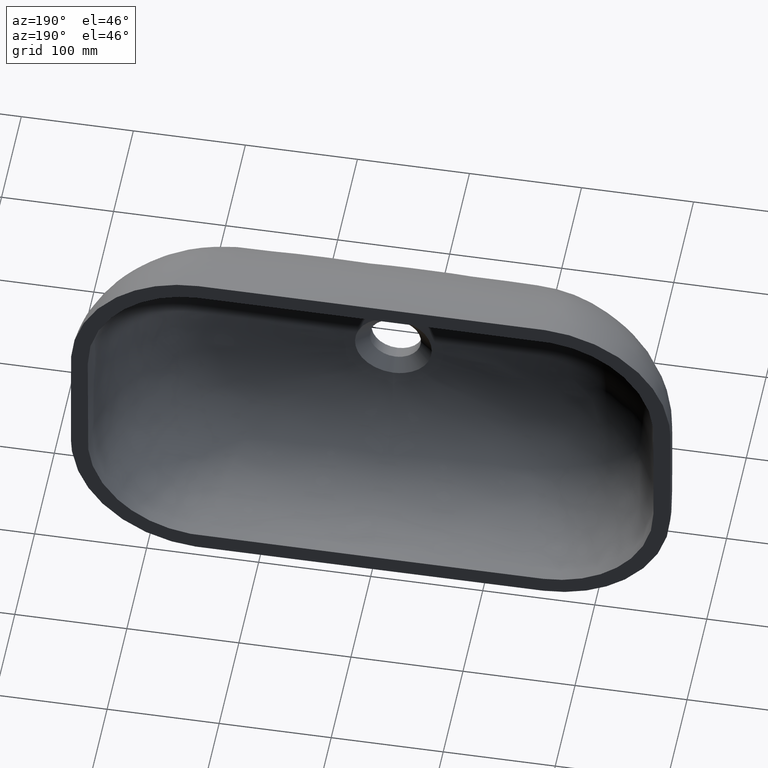
[diagram: clean part render]
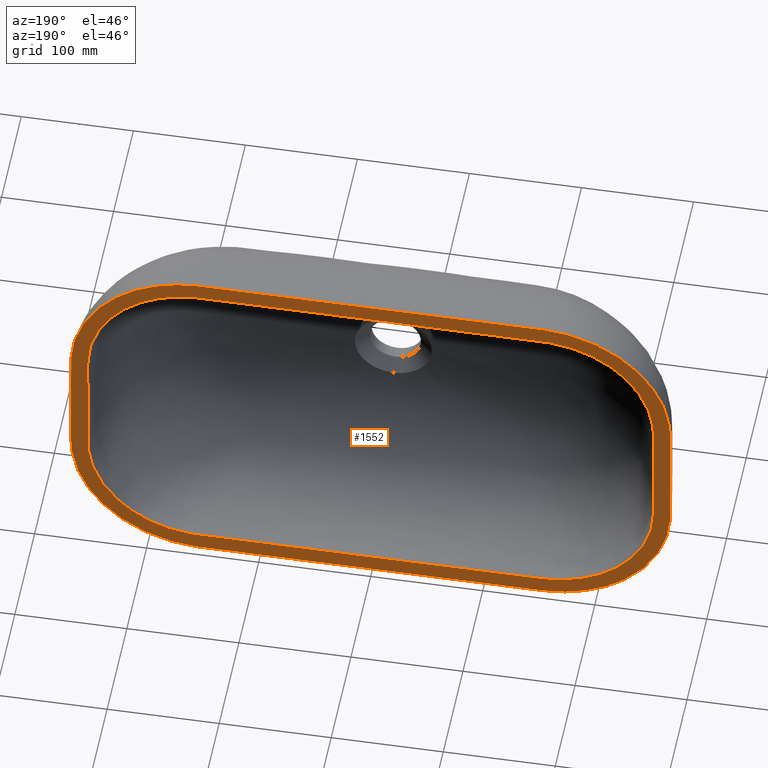
[diagram: same view with one face highlighted and labeled with its STEP entity id]
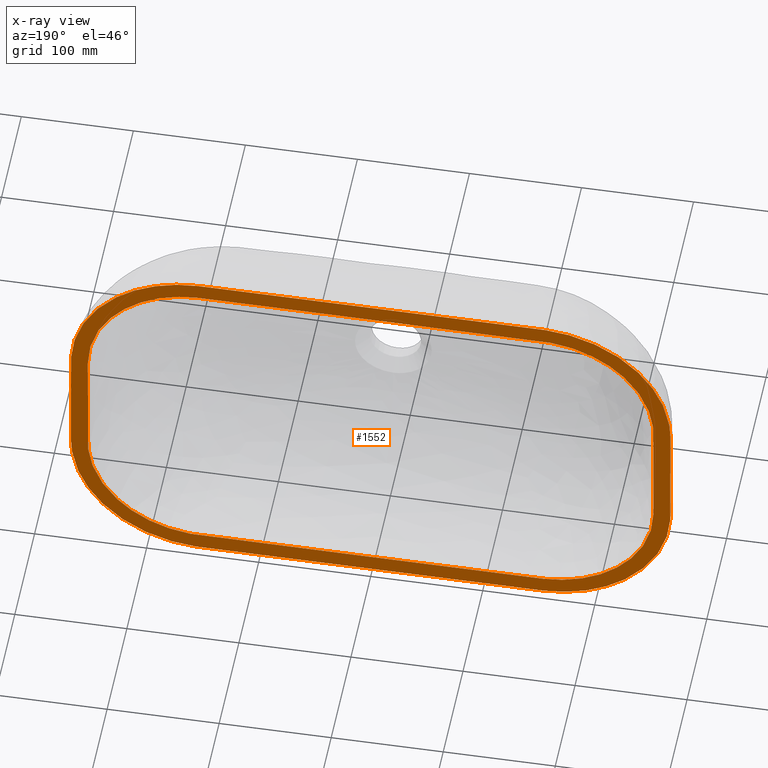
[diagram: x-ray of the same camera — body ghosted, the highlighted face saturated]
A machine part, auxiliary view. The second image highlights one B-rep face of the part: STEP entity #1552.
The next image is the same camera in x-ray: the body ghosted, the highlighted face saturated — about 0% of this face is hidden behind the body in this view.
In plain terms, the highlighted planar face has unit normal (0, 1, 0).
Its self-contained STEP definition (entity closure, byte-faithful):
#3 = CARTESIAN_POINT ( 'NONE',  ( 252.5000000000000600, 0.0000000000000000000, 4.093947403305264700E-013 ) ) ;
#24 = EDGE_CURVE ( 'NONE', #2799, #1051, #1703, .T. ) ;
#50 = CARTESIAN_POINT ( 'NONE',  ( -146.2050616840752800, 0.0000000000000000000, 150.0000000000000900 ) ) ;
#53 = CARTESIAN_POINT ( 'NONE',  ( 5.521322982815487400E-013, 0.0000000000000000000, -150.0000000000000900 ) ) ;
#75 = CARTESIAN_POINT ( 'NONE',  ( -252.4999999999999400, 0.0000000000000000000, -31.26941913139129200 ) ) ;
#103 = CARTESIAN_POINT ( 'NONE',  ( -47.68586417537038400, 0.0000000000000000000, -150.0000000000000900 ) ) ;
#173 = CARTESIAN_POINT ( 'NONE',  ( -267.4999999999999400, 0.0000000000000000000, -33.33333333333328600 ) ) ;
#204 = CARTESIAN_POINT ( 'NONE',  ( -155.8552154633222000, 0.0000000000000000000, 164.9999999999999700 ) ) ;
#376 = CARTESIAN_POINT ( 'NONE',  ( 155.8552154633219700, 0.0000000000000000000, -164.9999999999999400 ) ) ;
#461 = CARTESIAN_POINT ( 'NONE',  ( -2.182126180372280600E-013, 0.0000000000000000000, -164.9999999999999700 ) ) ;
#490 = CARTESIAN_POINT ( 'NONE',  ( 159.1957514213911500, 0.0000000000000000000, -164.8529500517273900 ) ) ;
#548 = CARTESIAN_POINT ( 'NONE',  ( 267.4841924269527500, 0.0000000000000000000, 52.19856327019732600 ) ) ;
#606 = CARTESIAN_POINT ( 'NONE',  ( 4.768586417537084900, 0.0000000000000000000, 150.0000000000000900 ) ) ;
#633 = CARTESIAN_POINT ( 'NONE',  ( 146.2050616840755000, 0.0000000000000000000, 150.0000000000000600 ) ) ;
#662 = CARTESIAN_POINT ( 'NONE',  ( 267.1830792806035800, 0.0000000000000000000, -62.68921065731597500 ) ) ;
#694 = CARTESIAN_POINT ( 'NONE',  ( 190.0567244576950000, 0.0000000000000000000, -144.5806142157572900 ) ) ;
#723 = CARTESIAN_POINT ( 'NONE',  ( 250.1520662592155000, 0.0000000000000000000, -76.28651201574219000 ) ) ;
#738 = CARTESIAN_POINT ( 'NONE',  ( -171.5740750597823900, 0.0000000000000000000, 150.0000000000000600 ) ) ;
#764 = CARTESIAN_POINT ( 'NONE',  ( -252.4999999999999400, 0.0000000000000000000, -48.96804289902890900 ) ) ;
#769 = ORIENTED_EDGE ( 'NONE', *, *, #24, .T. ) ;
#787 = ORIENTED_EDGE ( 'NONE', *, *, #7530, .T. ) ;
#822 = EDGE_CURVE ( 'NONE', #5162, #1463, #954, .T. ) ;
#833 = CARTESIAN_POINT ( 'NONE',  ( -155.8552154633224200, 0.0000000000000000000, -164.9999999999999700 ) ) ;
#863 = CARTESIAN_POINT ( 'NONE',  ( -267.4999999999999400, 0.0000000000000000000, 33.33333333333335700 ) ) ;
#894 = CARTESIAN_POINT ( 'NONE',  ( -68.62499999999973000, 0.0000000000000000000, 165.0000000000002000 ) ) ;
#954 = B_SPLINE_CURVE_WITH_KNOTS ( 'NONE', 3,
 ( #5307, #2459, #1093, #1207, #1895, #3271, #6687, #2577, #8746, #3956, #7364, #4649, #8057, #5339, #6028, #548, #1237, #8201, #3415, #3383, #4073, #1178, #662, #4761, #8775, #6141, #2036, #6828, #7509, #490, #376, #1924, #4589, #461 ),
 .UNSPECIFIED., .F., .F.,
 ( 4, 1, 1, 1, 2, 2, 2, 1, 1, 1, 2, 2, 1, 2, 2, 1, 1, 1, 2, 2, 2, 4 ),
 ( 0.0000000000000000000, 0.009889902390971110400, 0.01483485358645666500, 0.01977980478194233200, 0.09889902390971143400, 0.1054267786834032600, 0.1449858270096647800, 0.1604303108690128500, 0.1787648215975493100, 0.1970993323260858700, 0.2154338430546223200, 0.2175740905214061900, 0.2500000000000001700, 0.2824259094785940300, 0.2845661569453784600, 0.3029006676739149900, 0.3212351784024515800, 0.3395696891309881700, 0.3550141729903358900, 0.3945732213165978300, 0.4011009760902891100, 0.5000000000000005600 ),
 .UNSPECIFIED. ) ;
#1051 = VERTEX_POINT ( 'NONE', #3812 ) ;
#1093 = CARTESIAN_POINT ( 'NONE',  ( 12.70833333333330700, 0.0000000000000000000, 165.0000000000000300 ) ) ;
#1178 = CARTESIAN_POINT ( 'NONE',  ( 267.4841924269527500, 0.0000000000000000000, -52.19856327019777400 ) ) ;
#1207 = CARTESIAN_POINT ( 'NONE',  ( 22.87500000000000700, 0.0000000000000000000, 165.0000000000000300 ) ) ;
#1237 = CARTESIAN_POINT ( 'NONE',  ( 267.5000000000000600, 0.0000000000000000000, 51.10007064371214400 ) ) ;
#1321 = CARTESIAN_POINT ( 'NONE',  ( 171.5740750597822700, 0.0000000000000000000, 149.9999999999998600 ) ) ;
#1408 = CARTESIAN_POINT ( 'NONE',  ( 1.301042606982605300E-015, 0.0000000000000000000, 165.0000000000000300 ) ) ;
#1427 = CARTESIAN_POINT ( 'NONE',  ( -212.1746747013774600, 0.0000000000000000000, 130.5718779813458900 ) ) ;
#1453 = CARTESIAN_POINT ( 'NONE',  ( -250.1520662592153900, 0.0000000000000000000, -76.28651201574221800 ) ) ;
#1463 = VERTEX_POINT ( 'NONE', #5395 ) ;
#1520 = CARTESIAN_POINT ( 'NONE',  ( -182.6133373938369000, 0.0000000000000000000, -162.8045061827871800 ) ) ;
#1551 = CARTESIAN_POINT ( 'NONE',  ( -267.4841924269526300, 0.0000000000000000000, 52.19856327019770200 ) ) ;
#1552 = ADVANCED_FACE ( 'NONE', ( #2398, #6364 ), #2692, .T. ) ;
#1583 = CARTESIAN_POINT ( 'NONE',  ( -12.70833333333329100, 0.0000000000000000000, 165.0000000000000300 ) ) ;
#1623 = AXIS2_PLACEMENT_3D ( 'NONE', #1408, #6880, #2272 ) ;
#1703 = B_SPLINE_CURVE_WITH_KNOTS ( 'NONE', 3,
 ( #8662, #2634, #5217, #3098, #1806, #6204, #694, #6716, #3986, #7480, #723, #5514, #8689, #5857, #6629, #3, #2754, #7911, #2489, #6598, #6113, #6798, #7422, #2007, #2665, #1321, #5423, #633, #4042, #1836, #2432, #5278, #606, #4703 ),
 .UNSPECIFIED., .F., .F.,
 ( 4, 2, 2, 2, 1, 1, 1, 2, 2, 1, 2, 2, 1, 1, 1, 2, 2, 2, 1, 1, 1, 4 ),
 ( 0.5000000000000001100, 0.5988990239097113900, 0.6054267786834026700, 0.6449858270096645600, 0.6604303108690123800, 0.6787648215975488100, 0.6970993323260853400, 0.7154338430546218800, 0.7175740905214063000, 0.7500000000000002200, 0.7824259094785941400, 0.7845661569453779000, 0.8029006676739143300, 0.8212351784024509700, 0.8395696891309874000, 0.8550141729903354400, 0.8945732213165968900, 0.9011009760902886100, 0.9802201952180577000, 0.9851651464135433600, 0.9901100976090289100, 1.000000000000000000 ),
 .UNSPECIFIED. ) ;
#1806 = CARTESIAN_POINT ( 'NONE',  ( 149.3525308420379600, 0.0000000000000000000, -149.9999999999999700 ) ) ;
#1836 = CARTESIAN_POINT ( 'NONE',  ( 64.37591663675054600, 0.0000000000000000000, 150.0000000000003100 ) ) ;
#1895 = CARTESIAN_POINT ( 'NONE',  ( 68.62500000000005700, 0.0000000000000000000, 165.0000000000000300 ) ) ;
#1924 = CARTESIAN_POINT ( 'NONE',  ( 101.6666666666667400, 0.0000000000000000000, -164.9999999999998000 ) ) ;
#2007 = CARTESIAN_POINT ( 'NONE',  ( 212.1746747013775100, 0.0000000000000000000, 130.5718779813460300 ) ) ;
#2036 = CARTESIAN_POINT ( 'NONE',  ( 224.7483168546813800, 0.0000000000000000000, -139.8077178233010900 ) ) ;
#2084 = CARTESIAN_POINT ( 'NONE',  ( 4.336808689942017700E-016, 0.0000000000000000000, 150.0000000000000600 ) ) ;
#2110 = CARTESIAN_POINT ( 'NONE',  ( -240.1607435241636800, 0.0000000000000000000, 100.4493998604104900 ) ) ;
#2138 = CARTESIAN_POINT ( 'NONE',  ( -224.8855864008491500, 0.0000000000000000000, -120.4304068195825300 ) ) ;
#2204 = CARTESIAN_POINT ( 'NONE',  ( -224.7483168546818300, 0.0000000000000000000, -139.8077178233006100 ) ) ;
#2233 = CARTESIAN_POINT ( 'NONE',  ( -264.3455447764162600, 0.0000000000000000000, 81.19788710368840200 ) ) ;
#2265 = CARTESIAN_POINT ( 'NONE',  ( 1.301042606982605300E-015, 0.0000000000000000000, 165.0000000000000300 ) ) ;
#2272 = DIRECTION ( 'NONE',  ( -5.782411586589362300E-017, 0.0000000000000000000, -1.000000000000000000 ) ) ;
#2398 = FACE_OUTER_BOUND ( 'NONE', #5396, .T. ) ;
#2432 = CARTESIAN_POINT ( 'NONE',  ( 21.45863887891687600, 0.0000000000000000000, 150.0000000000001400 ) ) ;
#2459 = CARTESIAN_POINT ( 'NONE',  ( 5.083333333333325000, 0.0000000000000000000, 165.0000000000000300 ) ) ;
#2489 = CARTESIAN_POINT ( 'NONE',  ( 252.5000000000000600, 0.0000000000000000000, 48.96804289902889500 ) ) ;
#2558 = B_SPLINE_CURVE_WITH_KNOTS ( 'NONE', 3,
 ( #2863, #7645, #4932, #833, #5628, #1520, #6308, #2204, #6990, #2891, #7674, #3581, #8372, #4270, #173, #4964, #863, #5658, #1551, #6342, #2233, #7019, #2921, #7707, #3610, #8404, #4298, #204, #4993, #894, #5686, #1583, #6374, #2265 ),
 .UNSPECIFIED., .F., .F.,
 ( 4, 2, 2, 2, 1, 1, 1, 2, 2, 1, 2, 2, 1, 1, 1, 2, 2, 2, 1, 1, 1, 4 ),
 ( 0.5000000000000005600, 0.5988990239097116100, 0.6054267786834040000, 0.6449858270096651100, 0.6604303108690132700, 0.6787648215975496900, 0.6970993323260861200, 0.7154338430546226500, 0.7175740905214065300, 0.7500000000000002200, 0.7824259094785941400, 0.7845661569453784600, 0.8029006676739148800, 0.8212351784024514200, 0.8395696891309878400, 0.8550141729903355500, 0.8945732213165971100, 0.9011009760902890500, 0.9802201952180578100, 0.9851651464135433600, 0.9901100976090289100, 1.000000000000000000 ),
 .UNSPECIFIED. ) ;
#2577 = CARTESIAN_POINT ( 'NONE',  ( 159.1957514213917200, 0.0000000000000000000, 164.8529500517274500 ) ) ;
#2634 = CARTESIAN_POINT ( 'NONE',  ( 47.68586417537198900, 0.0000000000000000000, -150.0000000000000900 ) ) ;
#2665 = CARTESIAN_POINT ( 'NONE',  ( 190.0567244576946300, 0.0000000000000000000, 144.5806142157575500 ) ) ;
#2692 = PLANE ( 'NONE',  #1623 ) ;
#2754 = CARTESIAN_POINT ( 'NONE',  ( 252.5000000000000600, 0.0000000000000000000, 31.26941913139124600 ) ) ;
#2794 = CARTESIAN_POINT ( 'NONE',  ( -252.4999999999999400, 0.0000000000000000000, 58.84029946666672100 ) ) ;
#2799 = VERTEX_POINT ( 'NONE', #53 ) ;
#2825 = CARTESIAN_POINT ( 'NONE',  ( -190.0567244576942000, 0.0000000000000000000, -144.5806142157575800 ) ) ;
#2863 = CARTESIAN_POINT ( 'NONE',  ( -2.182126180372280600E-013, 0.0000000000000000000, -164.9999999999999700 ) ) ;
#2891 = CARTESIAN_POINT ( 'NONE',  ( -253.7101847445661300, 0.0000000000000000000, -106.9392715366441800 ) ) ;
#2921 = CARTESIAN_POINT ( 'NONE',  ( -237.8745547956977200, 0.0000000000000000000, 128.4953578530049500 ) ) ;
#2983 = CARTESIAN_POINT ( 'NONE',  ( 1.301042606982605300E-015, 0.0000000000000000000, 165.0000000000000300 ) ) ;
#3098 = CARTESIAN_POINT ( 'NONE',  ( 146.2050616840758400, 0.0000000000000000000, -149.9999999999999700 ) ) ;
#3271 = CARTESIAN_POINT ( 'NONE',  ( 111.8333333333333900, 0.0000000000000000000, 165.0000000000000300 ) ) ;
#3383 = CARTESIAN_POINT ( 'NONE',  ( 267.5000000000000600, 0.0000000000000000000, -33.33333333333332100 ) ) ;
#3415 = CARTESIAN_POINT ( 'NONE',  ( 267.5000000000001100, 0.0000000000000000000, 1.734723475976807100E-015 ) ) ;
#3460 = CARTESIAN_POINT ( 'NONE',  ( -21.45863887891684700, 0.0000000000000000000, 150.0000000000000000 ) ) ;
#3484 = CARTESIAN_POINT ( 'NONE',  ( -252.4999999999999400, 0.0000000000000000000, 47.93608579805737700 ) ) ;
#3513 = CARTESIAN_POINT ( 'NONE',  ( -149.3525308420373700, 0.0000000000000000000, -149.9999999999999400 ) ) ;
#3581 = CARTESIAN_POINT ( 'NONE',  ( -267.1830792806033500, 0.0000000000000000000, -62.68921065731501600 ) ) ;
#3610 = CARTESIAN_POINT ( 'NONE',  ( -201.8203700246352500, 0.0000000000000000000, 155.8159027715678900 ) ) ;
#3812 = CARTESIAN_POINT ( 'NONE',  ( 4.336808689942017700E-016, 0.0000000000000000000, 150.0000000000000600 ) ) ;
#3956 = CARTESIAN_POINT ( 'NONE',  ( 201.8203700246352800, 0.0000000000000000000, 155.8159027715678600 ) ) ;
#3986 = CARTESIAN_POINT ( 'NONE',  ( 224.8855864008494300, 0.0000000000000000000, -120.4304068195824000 ) ) ;
#4042 = CARTESIAN_POINT ( 'NONE',  ( 104.9089011858154000, 0.0000000000000000000, 150.0000000000005700 ) ) ;
#4073 = CARTESIAN_POINT ( 'NONE',  ( 267.5000000000000600, 0.0000000000000000000, -51.10007064371230000 ) ) ;
#4147 = CARTESIAN_POINT ( 'NONE',  ( -104.9089011858155500, 0.0000000000000000000, 150.0000000000001400 ) ) ;
#4173 = CARTESIAN_POINT ( 'NONE',  ( -252.4999999999999400, 0.0000000000000000000, -3.642919299551294900E-013 ) ) ;
#4200 = CARTESIAN_POINT ( 'NONE',  ( -95.37172835074120800, 0.0000000000000000000, -150.0000000000000300 ) ) ;
#4270 = CARTESIAN_POINT ( 'NONE',  ( -267.4999999999999400, 0.0000000000000000000, -51.10007064371202300 ) ) ;
#4298 = CARTESIAN_POINT ( 'NONE',  ( -159.1957514213916100, 0.0000000000000000000, 164.8529500517274500 ) ) ;
#4568 = B_SPLINE_CURVE_WITH_KNOTS ( 'NONE', 3,
 ( #2084, #6192, #7554, #3460, #8246, #4147, #50, #4838, #738, #5528, #1427, #6218, #2110, #6896, #2794, #7579, #3484, #8272, #4173, #75, #4866, #764, #5557, #1453, #6245, #2138, #6924, #2825, #7607, #3513, #8301, #4200, #103, #4895 ),
 .UNSPECIFIED., .F., .F.,
 ( 4, 1, 1, 1, 2, 2, 2, 1, 1, 1, 2, 2, 1, 2, 2, 1, 1, 1, 2, 2, 2, 4 ),
 ( 0.0000000000000000000, 0.009889902390971091300, 0.01483485358645663900, 0.01977980478194218300, 0.09889902390971114200, 0.1054267786834029700, 0.1449858270096645900, 0.1604303108690123800, 0.1787648215975488600, 0.1970993323260853700, 0.2154338430546218500, 0.2175740905214061700, 0.2500000000000000600, 0.2824259094785939200, 0.2845661569453777400, 0.3029006676739142100, 0.3212351784024506400, 0.3395696891309871700, 0.3550141729903353300, 0.3945732213165966700, 0.4011009760902890000, 0.5000000000000001100 ),
 .UNSPECIFIED. ) ;
#4589 = CARTESIAN_POINT ( 'NONE',  ( 50.83333333333278100, 0.0000000000000000000, -164.9999999999998900 ) ) ;
#4614 = EDGE_CURVE ( 'NONE', #1051, #2799, #4568, .T. ) ;
#4649 = CARTESIAN_POINT ( 'NONE',  ( 237.8745547956980300, 0.0000000000000000000, 128.4953578530048000 ) ) ;
#4703 = CARTESIAN_POINT ( 'NONE',  ( 4.336808689942017700E-016, 0.0000000000000000000, 150.0000000000000600 ) ) ;
#4761 = CARTESIAN_POINT ( 'NONE',  ( 264.3455447764161500, 0.0000000000000000000, -81.19788710368862900 ) ) ;
#4838 = CARTESIAN_POINT ( 'NONE',  ( -149.3525308420376200, 0.0000000000000000000, 150.0000000000000300 ) ) ;
#4866 = CARTESIAN_POINT ( 'NONE',  ( -252.4999999999999400, 0.0000000000000000000, -47.93608579805782500 ) ) ;
#4895 = CARTESIAN_POINT ( 'NONE',  ( 5.521322982815487400E-013, 0.0000000000000000000, -150.0000000000000900 ) ) ;
#4932 = CARTESIAN_POINT ( 'NONE',  ( -101.6666666666669700, 0.0000000000000000000, -164.9999999999999100 ) ) ;
#4964 = CARTESIAN_POINT ( 'NONE',  ( -267.5000000000000000, 0.0000000000000000000, 7.979727989493312600E-014 ) ) ;
#4993 = CARTESIAN_POINT ( 'NONE',  ( -111.8333333333326900, 0.0000000000000000000, 165.0000000000005700 ) ) ;
#5162 = VERTEX_POINT ( 'NONE', #2983 ) ;
#5217 = CARTESIAN_POINT ( 'NONE',  ( 95.37172835074355200, 0.0000000000000000000, -150.0000000000000300 ) ) ;
#5278 = CARTESIAN_POINT ( 'NONE',  ( 11.92146604384269700, 0.0000000000000000000, 150.0000000000000900 ) ) ;
#5307 = CARTESIAN_POINT ( 'NONE',  ( 1.301042606982605300E-015, 0.0000000000000000000, 165.0000000000000300 ) ) ;
#5339 = CARTESIAN_POINT ( 'NONE',  ( 264.3455447764163800, 0.0000000000000000000, 81.19788710368790400 ) ) ;
#5395 = CARTESIAN_POINT ( 'NONE',  ( -2.182126180372280600E-013, 0.0000000000000000000, -164.9999999999999700 ) ) ;
#5396 = EDGE_LOOP ( 'NONE', ( #5814, #787 ) ) ;
#5423 = CARTESIAN_POINT ( 'NONE',  ( 149.3525308420377900, 0.0000000000000000000, 150.0000000000000900 ) ) ;
#5514 = CARTESIAN_POINT ( 'NONE',  ( 252.5000000000001700, 0.0000000000000000000, -58.84029946666674200 ) ) ;
#5528 = CARTESIAN_POINT ( 'NONE',  ( -190.0567244576947700, 0.0000000000000000000, 144.5806142157574900 ) ) ;
#5538 = ORIENTED_EDGE ( 'NONE', *, *, #4614, .T. ) ;
#5557 = CARTESIAN_POINT ( 'NONE',  ( -252.4999999999999400, 0.0000000000000000000, -58.84029946666664300 ) ) ;
#5628 = CARTESIAN_POINT ( 'NONE',  ( -159.1957514213920900, 0.0000000000000000000, -164.8529500517273600 ) ) ;
#5658 = CARTESIAN_POINT ( 'NONE',  ( -267.4999999999999400, 0.0000000000000000000, 51.10007064371229300 ) ) ;
#5686 = CARTESIAN_POINT ( 'NONE',  ( -22.87499999999990400, 0.0000000000000000000, 165.0000000000000600 ) ) ;
#5814 = ORIENTED_EDGE ( 'NONE', *, *, #822, .T. ) ;
#5857 = CARTESIAN_POINT ( 'NONE',  ( 252.5000000000000600, 0.0000000000000000000, -47.93608579805722100 ) ) ;
#5945 = EDGE_LOOP ( 'NONE', ( #5538, #769 ) ) ;
#6028 = CARTESIAN_POINT ( 'NONE',  ( 267.1830792806035800, 0.0000000000000000000, 62.68921065731513000 ) ) ;
#6113 = CARTESIAN_POINT ( 'NONE',  ( 250.1520662592155000, 0.0000000000000000000, 76.28651201574216100 ) ) ;
#6141 = CARTESIAN_POINT ( 'NONE',  ( 237.8745547956974600, 0.0000000000000000000, -128.4953578530052000 ) ) ;
#6192 = CARTESIAN_POINT ( 'NONE',  ( -4.768586417537084900, 0.0000000000000000000, 150.0000000000000300 ) ) ;
#6204 = CARTESIAN_POINT ( 'NONE',  ( 171.5740750597825600, 0.0000000000000000000, -150.0000000000000000 ) ) ;
#6218 = CARTESIAN_POINT ( 'NONE',  ( -224.8855864008492600, 0.0000000000000000000, 120.4304068195823600 ) ) ;
#6245 = CARTESIAN_POINT ( 'NONE',  ( -240.1607435241636200, 0.0000000000000000000, -100.4493998604104700 ) ) ;
#6308 = CARTESIAN_POINT ( 'NONE',  ( -201.8203700246354500, 0.0000000000000000000, -155.8159027715674900 ) ) ;
#6342 = CARTESIAN_POINT ( 'NONE',  ( -267.1830792806033500, 0.0000000000000000000, 62.68921065731576900 ) ) ;
#6364 = FACE_BOUND ( 'NONE', #5945, .T. ) ;
#6374 = CARTESIAN_POINT ( 'NONE',  ( -5.083333333333321500, 0.0000000000000000000, 165.0000000000000300 ) ) ;
#6598 = CARTESIAN_POINT ( 'NONE',  ( 252.4999999999999400, 0.0000000000000000000, 58.84029946666664300 ) ) ;
#6629 = CARTESIAN_POINT ( 'NONE',  ( 252.5000000000000600, 0.0000000000000000000, -31.26941913139043900 ) ) ;
#6687 = CARTESIAN_POINT ( 'NONE',  ( 155.8552154633222500, 0.0000000000000000000, 165.0000000000000300 ) ) ;
#6716 = CARTESIAN_POINT ( 'NONE',  ( 212.1746747013777100, 0.0000000000000000000, -130.5718779813457500 ) ) ;
#6798 = CARTESIAN_POINT ( 'NONE',  ( 240.1607435241637300, 0.0000000000000000000, 100.4493998604104700 ) ) ;
#6828 = CARTESIAN_POINT ( 'NONE',  ( 201.8203700246348000, 0.0000000000000000000, -155.8159027715679500 ) ) ;
#6880 = DIRECTION ( 'NONE',  ( 0.0000000000000000000, 1.000000000000000000, 0.0000000000000000000 ) ) ;
#6896 = CARTESIAN_POINT ( 'NONE',  ( -250.1520662592153900, 0.0000000000000000000, 76.28651201574224700 ) ) ;
#6924 = CARTESIAN_POINT ( 'NONE',  ( -212.1746747013772300, 0.0000000000000000000, -130.5718779813460600 ) ) ;
#6990 = CARTESIAN_POINT ( 'NONE',  ( -237.8745547956982300, 0.0000000000000000000, -128.4953578530045200 ) ) ;
#7019 = CARTESIAN_POINT ( 'NONE',  ( -253.7101847445657400, 0.0000000000000000000, 106.9392715366448400 ) ) ;
#7364 = CARTESIAN_POINT ( 'NONE',  ( 224.7483168546818900, 0.0000000000000000000, 139.8077178233007500 ) ) ;
#7422 = CARTESIAN_POINT ( 'NONE',  ( 224.8855864008491800, 0.0000000000000000000, 120.4304068195824000 ) ) ;
#7480 = CARTESIAN_POINT ( 'NONE',  ( 240.1607435241637900, 0.0000000000000000000, -100.4493998604104700 ) ) ;
#7509 = CARTESIAN_POINT ( 'NONE',  ( 182.6133373938358200, 0.0000000000000000000, -162.8045061827874900 ) ) ;
#7530 = EDGE_CURVE ( 'NONE', #1463, #5162, #2558, .T. ) ;
#7554 = CARTESIAN_POINT ( 'NONE',  ( -11.92146604384270200, 0.0000000000000000000, 150.0000000000000300 ) ) ;
#7579 = CARTESIAN_POINT ( 'NONE',  ( -252.4999999999999400, 0.0000000000000000000, 48.96804289902869600 ) ) ;
#7607 = CARTESIAN_POINT ( 'NONE',  ( -171.5740750597820700, 0.0000000000000000000, -150.0000000000001100 ) ) ;
#7645 = CARTESIAN_POINT ( 'NONE',  ( -50.83333333333406800, 0.0000000000000000000, -164.9999999999999400 ) ) ;
#7674 = CARTESIAN_POINT ( 'NONE',  ( -264.3455447764162600, 0.0000000000000000000, -81.19788710368764800 ) ) ;
#7707 = CARTESIAN_POINT ( 'NONE',  ( -224.7483168546815500, 0.0000000000000000000, 139.8077178233007500 ) ) ;
#7911 = CARTESIAN_POINT ( 'NONE',  ( 252.5000000000000600, 0.0000000000000000000, 47.93608579805779600 ) ) ;
#8057 = CARTESIAN_POINT ( 'NONE',  ( 253.7101847445661900, 0.0000000000000000000, 106.9392715366444300 ) ) ;
#8201 = CARTESIAN_POINT ( 'NONE',  ( 267.5000000000000600, 0.0000000000000000000, 33.33333333333335700 ) ) ;
#8246 = CARTESIAN_POINT ( 'NONE',  ( -64.37591663675056000, 0.0000000000000000000, 149.9999999999998600 ) ) ;
#8272 = CARTESIAN_POINT ( 'NONE',  ( -252.4999999999999400, 0.0000000000000000000, 31.26941913139057000 ) ) ;
#8301 = CARTESIAN_POINT ( 'NONE',  ( -146.2050616840747100, 0.0000000000000000000, -149.9999999999999700 ) ) ;
#8372 = CARTESIAN_POINT ( 'NONE',  ( -267.4841924269526300, 0.0000000000000000000, -52.19856327019719100 ) ) ;
#8404 = CARTESIAN_POINT ( 'NONE',  ( -182.6133373938364700, 0.0000000000000000000, 162.8045061827873800 ) ) ;
#8662 = CARTESIAN_POINT ( 'NONE',  ( 5.521322982815487400E-013, 0.0000000000000000000, -150.0000000000000900 ) ) ;
#8689 = CARTESIAN_POINT ( 'NONE',  ( 252.5000000000000600, 0.0000000000000000000, -48.96804289902858900 ) ) ;
#8746 = CARTESIAN_POINT ( 'NONE',  ( 182.6133373938366400, 0.0000000000000000000, 162.8045061827873500 ) ) ;
#8775 = CARTESIAN_POINT ( 'NONE',  ( 253.7101847445657400, 0.0000000000000000000, -106.9392715366450700 ) ) ;